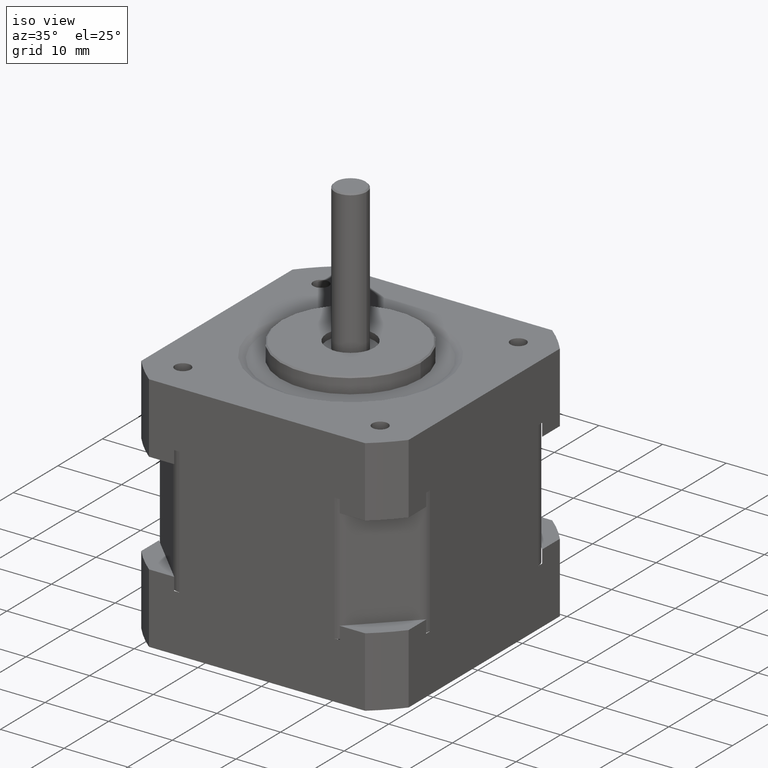
[diagram: clean part render]
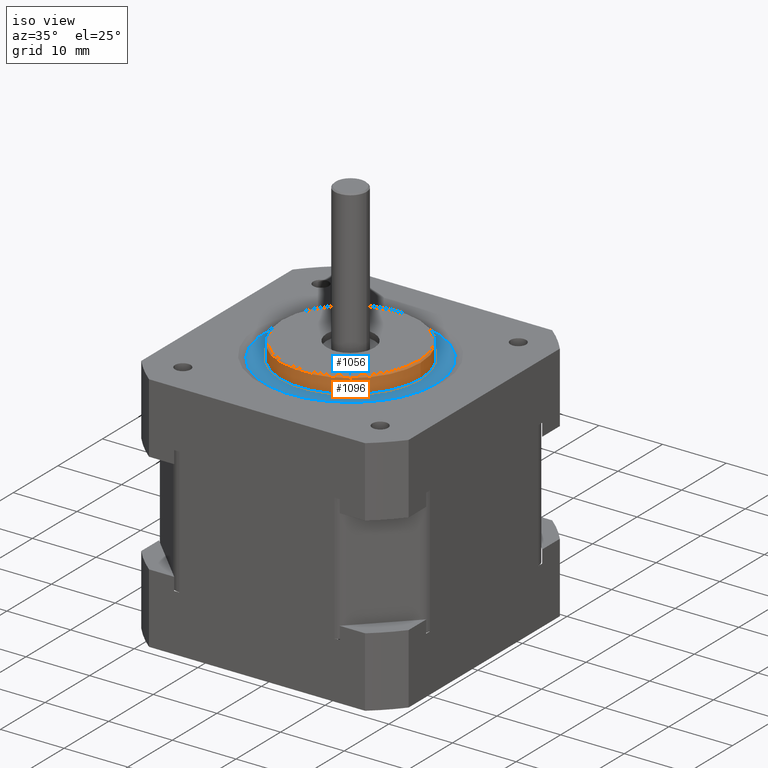
[diagram: same view with the hole feature highlighted: cylindrical wall and planar end face, labeled with their STEP entity ids]
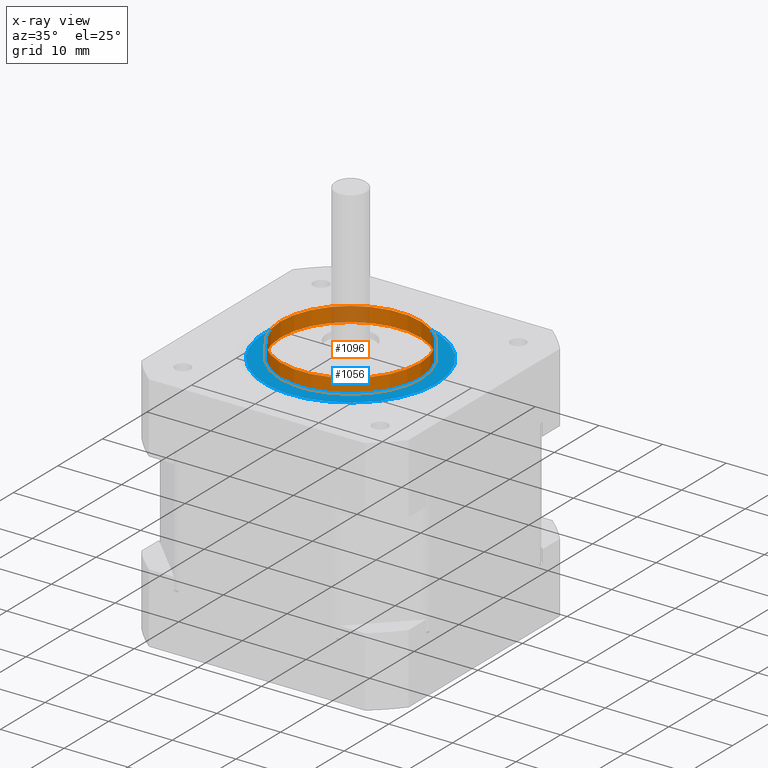
[diagram: x-ray of the same camera — body ghosted, the hole faces saturated]
A machine part, iso view. The highlighted faces form one hole feature of diameter 22 mm: the cylindrical wall (entity #1096, orange) and its adjacent planar end face (entity #1056, blue) — they share a circular edge in the B-rep.
The next image is the same camera in x-ray (body ghosted, the hole faces saturated) — the bore reads through the body.
Wall:
#1045=CARTESIAN_POINT('',(11.0,1.347111E-015,23.750000000000007));
#1046=VERTEX_POINT('',#1045);
#1047=CARTESIAN_POINT('',(-1.403331E-048,-2.564162E-032,23.750000000000007));
#1048=DIRECTION('',(0.0,0.0,1.0));
#1049=DIRECTION('',(-1.0,0.0,0.0));
#1050=AXIS2_PLACEMENT_3D('',#1047,#1048,#1049);
#1051=CIRCLE('',#1050,11.0);
#1052=EDGE_CURVE('',#1046,#1046,#1051,.T.);
#1073=CARTESIAN_POINT('',(11.0,1.347067E-015,26.050000000000011));
#1074=VERTEX_POINT('',#1073);
#1075=CARTESIAN_POINT('',(-1.403331E-048,-3.153919E-032,26.050000000000011));
#1076=DIRECTION('',(0.0,0.0,1.0));
#1077=DIRECTION('',(-1.0,0.0,0.0));
#1078=AXIS2_PLACEMENT_3D('',#1075,#1076,#1077);
#1079=CIRCLE('',#1078,11.0);
#1080=EDGE_CURVE('',#1074,#1074,#1079,.T.);
#1085=CARTESIAN_POINT('',(-1.403331E-048,-2.692370E-032,24.250000000000007));
#1086=DIRECTION('',(-1.845360E-113,-2.564162E-033,1.0));
#1087=DIRECTION('',(-1.0,0.0,0.0));
#1088=AXIS2_PLACEMENT_3D('',#1085,#1086,#1087);
#1089=CYLINDRICAL_SURFACE('',#1088,11.0);
#1090=ORIENTED_EDGE('',*,*,#1052,.T.);
#1091=EDGE_LOOP('',(#1090));
#1092=FACE_OUTER_BOUND('',#1091,.T.);
#1093=ORIENTED_EDGE('',*,*,#1080,.F.);
#1094=EDGE_LOOP('',(#1093));
#1095=FACE_BOUND('',#1094,.T.);
#1096=ADVANCED_FACE('',(#1092,#1095),#1089,.T.);
End face:
#909=CARTESIAN_POINT('',(13.500000000000000,1.653273E-015,23.750000000000007));
#910=VERTEX_POINT('',#909);
#911=CARTESIAN_POINT('',(-1.403331E-048,-2.564162E-032,23.750000000000007));
#912=DIRECTION('',(0.0,0.0,1.0));
#913=DIRECTION('',(-1.0,0.0,0.0));
#914=AXIS2_PLACEMENT_3D('',#911,#912,#913);
#915=CIRCLE('',#914,13.500000000000000);
#916=EDGE_CURVE('',#910,#910,#915,.T.);
#1037=CARTESIAN_POINT('',(-1.403331E-048,-2.564162E-032,23.750000000000007));
#1038=DIRECTION('',(0.0,0.0,-1.0));
#1039=DIRECTION('',(-1.0,0.0,0.0));
#1040=AXIS2_PLACEMENT_3D('',#1037,#1038,#1039);
#1041=PLANE('',#1040);
#1042=ORIENTED_EDGE('',*,*,#916,.T.);
#1043=EDGE_LOOP('',(#1042));
#1044=FACE_OUTER_BOUND('',#1043,.T.);
#1045=CARTESIAN_POINT('',(11.0,1.347111E-015,23.750000000000007));
#1046=VERTEX_POINT('',#1045);
#1047=CARTESIAN_POINT('',(-1.403331E-048,-2.564162E-032,23.750000000000007));
#1048=DIRECTION('',(0.0,0.0,1.0));
#1049=DIRECTION('',(-1.0,0.0,0.0));
#1050=AXIS2_PLACEMENT_3D('',#1047,#1048,#1049);
#1051=CIRCLE('',#1050,11.0);
#1052=EDGE_CURVE('',#1046,#1046,#1051,.T.);
#1053=ORIENTED_EDGE('',*,*,#1052,.F.);
#1054=EDGE_LOOP('',(#1053));
#1055=FACE_BOUND('',#1054,.T.);
#1056=ADVANCED_FACE('',(#1044,#1055),#1041,.F.);